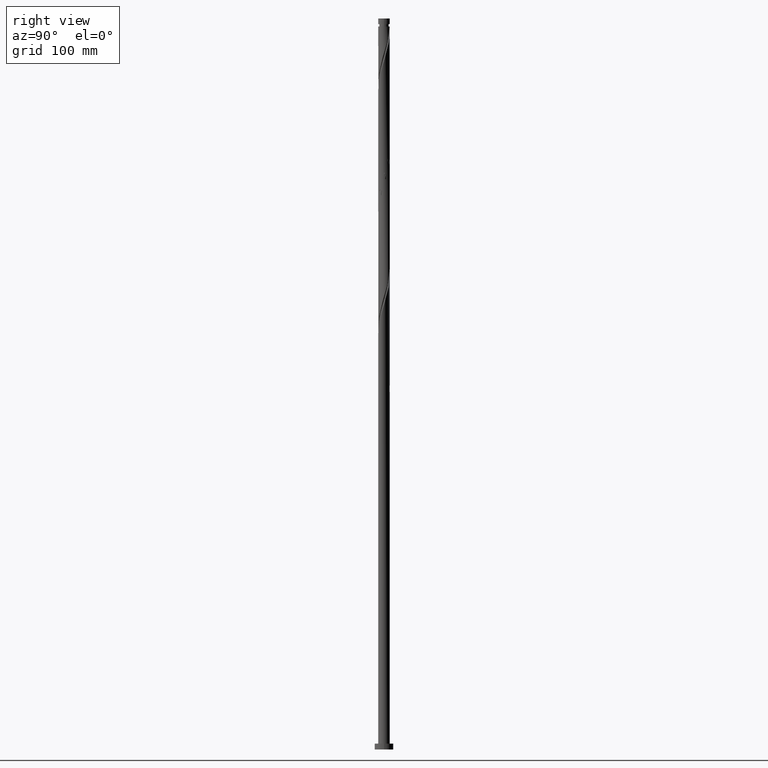
[diagram: clean part render]
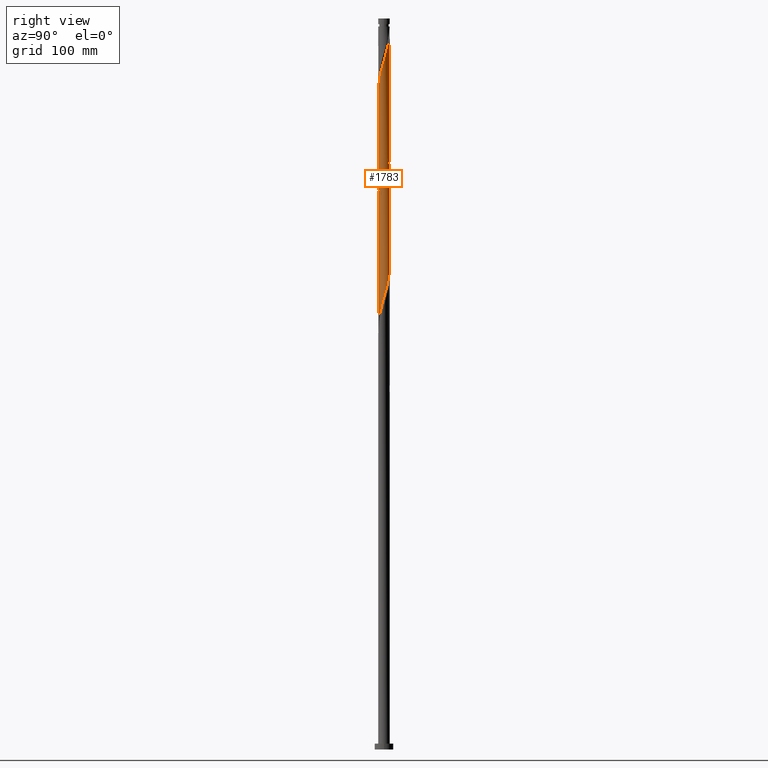
[diagram: same view with one face highlighted and labeled with its STEP entity id]
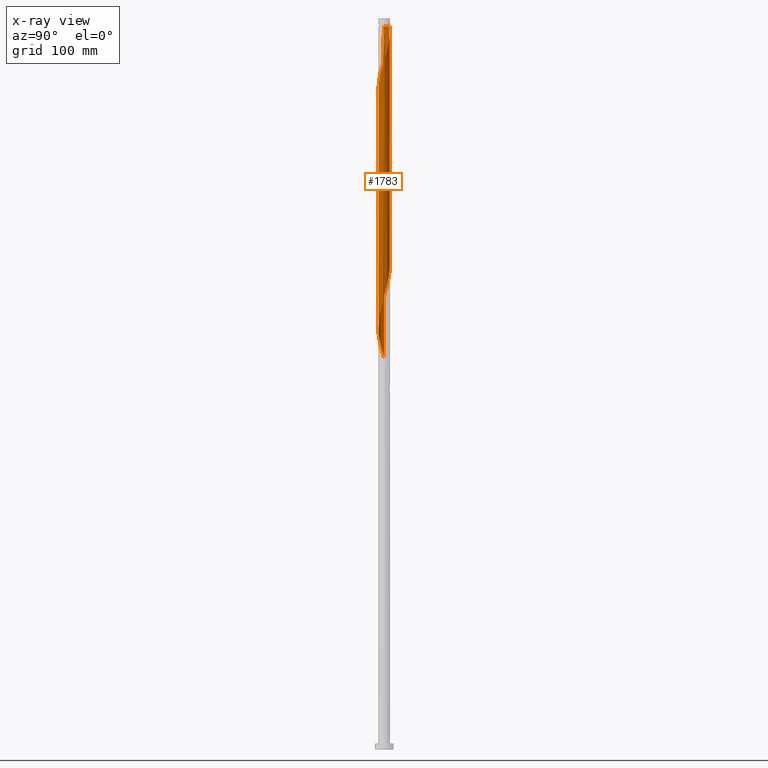
[diagram: x-ray of the same camera — body ghosted, the highlighted face saturated]
A machine part, right view. The second image highlights one B-rep face of the part: STEP entity #1783.
The next image is the same camera in x-ray: the body ghosted, the highlighted face saturated — about 0% of this face is hidden behind the body in this view.
In plain terms, the highlighted cylindrical surface (bore or boss wall) has radius 5 mm, axis along (-0, -0, -1).
Its self-contained STEP definition (entity closure, byte-faithful):
#5 = CARTESIAN_POINT ( 'NONE',  ( -0.9949874371066282919, -4.899999999999999467, 465.6409820109332145 ) ) ;
#23 = CARTESIAN_POINT ( 'NONE',  ( 1.298982946493225876, -4.850495550775351106, 368.3615702462273589 ) ) ;
#31 = CARTESIAN_POINT ( 'NONE',  ( -4.949659217317762483, -0.8458944471936422627, 445.5674525991682913 ) ) ;
#41 = CARTESIAN_POINT ( 'NONE',  ( -2.307797741308302175, -4.459678617185772076, 356.0086290697566938 ) ) ;
#49 = CARTESIAN_POINT ( 'NONE',  ( 4.985236888669570376, 0.3839442197092480802, 391.5233349521097352 ) ) ;
#56 = CARTESIAN_POINT ( 'NONE',  ( 3.942796063405584750, -3.074794172362343758, 379.1703937756391269 ) ) ;
#65 = CARTESIAN_POINT ( 'NONE',  ( -5.000000000000000888, -6.498353393827081133E-15, 337.7391907856272724 ) ) ;
#72 = CARTESIAN_POINT ( 'NONE',  ( -4.920992084686811374, -0.9992500617070465552, 544.3909820109331577 ) ) ;
#75 = CARTESIAN_POINT ( 'NONE',  ( -4.440654414424053620, 2.297953082997162610, 539.7586290697566938 ) ) ;
#89 = CARTESIAN_POINT ( 'NONE',  ( -4.970903322354092602, 0.5386280347410965508, 545.9350996579920547 ) ) ;
#102 = CARTESIAN_POINT ( 'NONE',  ( -3.657874423950744358, 3.440148031986227650, 535.1262761285802299 ) ) ;
#108 = CARTESIAN_POINT ( 'NONE',  ( 1.298982946493228541, 4.850495550775359987, 615.4203937756390133 ) ) ;
#117 = CARTESIAN_POINT ( 'NONE',  ( 2.697882318025196735, -4.209683004465666123, 576.8174525991685186 ) ) ;
#122 = CARTESIAN_POINT ( 'NONE',  ( 3.087966894742082857, 3.959687391745545515, 510.4203937756389564 ) ) ;
#128 = CARTESIAN_POINT ( 'NONE',  ( 2.307797741308303952, -4.459678617185782734, 575.2733349521096216 ) ) ;
#130 = CARTESIAN_POINT ( 'NONE',  ( 4.829804191874024433, 1.293441714247731245, 499.6115702462273021 ) ) ;
#136 = CARTESIAN_POINT ( 'NONE',  ( 3.087966894742087298, -3.959687391745552620, 578.3615702462274157 ) ) ;
#141 = CARTESIAN_POINT ( 'NONE',  ( -4.309847445641418417, -2.576796223737888081, 451.7439231874037091 ) ) ;
#150 = CARTESIAN_POINT ( 'NONE',  ( 3.942796063405584750, -3.074794172362343758, 484.1703937756390701 ) ) ;
#169 = CARTESIAN_POINT ( 'NONE',  ( 0.5409355705206818632, 4.992199163887311109, 414.6850996579921684 ) ) ;
#181 = CARTESIAN_POINT ( 'NONE',  ( -4.920992084686805157, 0.9992500617070461111, 439.3909820109331008 ) ) ;
#189 = CARTESIAN_POINT ( 'NONE',  ( -0.9949874371066282919, -4.899999999999999467, 360.6409820109332145 ) ) ;
#200 = CARTESIAN_POINT ( 'NONE',  ( 1.878418522500436394, 4.633739726649229063, 410.0527467168155908 ) ) ;
#205 = EDGE_LOOP ( 'NONE', ( #1254, #1425, #269, #314, #611, #1974, #1520, #957 ) ) ;
#209 = CARTESIAN_POINT ( 'NONE',  ( -4.787291605337244071, 1.442857957481454845, 437.8468643638743174 ) ) ;
#217 = CARTESIAN_POINT ( 'NONE',  ( -5.000000000000010658, 2.957871199948856038E-15, 541.0427732362393272 ) ) ;
#220 = CARTESIAN_POINT ( 'NONE',  ( -4.227717702860424254, 2.709440312738462087, 538.2145114226976830 ) ) ;
#228 = CARTESIAN_POINT ( 'NONE',  ( -5.000000000000000888, -2.405137692887724633E-15, 547.7391907856273292 ) ) ;
#244 = VECTOR ( 'NONE', #1192, 1000.000000000000000 ) ;
#260 = CARTESIAN_POINT ( 'NONE',  ( -2.565804065323801897, 4.291462396243016286, 530.4939231874037660 ) ) ;
#268 = CARTESIAN_POINT ( 'NONE',  ( -0.8422860106089078425, -4.928544843697032718, 564.4645114226979103 ) ) ;
#269 = ORIENTED_EDGE ( 'NONE', *, *, #1195, .F. ) ;
#276 = CARTESIAN_POINT ( 'NONE',  ( 5.000000000000003553, -0.2700999183963146422, 494.3352715536144615 ) ) ;
#284 = CARTESIAN_POINT ( 'NONE',  ( 0.8422860106089081755, 4.928544843697034494, 616.9645114226980240 ) ) ;
#291 = CARTESIAN_POINT ( 'NONE',  ( 4.653591125987684762, -1.886465853255862912, 488.8027467168154772 ) ) ;
#294 = VERTEX_POINT ( 'NONE', #1885 ) ;
#297 = CARTESIAN_POINT ( 'NONE',  ( 4.949659217317769588, -0.8458944471936451492, 590.7145114226979103 ) ) ;
#301 = CARTESIAN_POINT ( 'NONE',  ( -3.762979039183496077, -3.324853761300992527, 454.8321584815213896 ) ) ;
#305 = CARTESIAN_POINT ( 'NONE',  ( 4.440654414424064278, 2.297953082997165719, 601.5233349521097352 ) ) ;
#307 = CARTESIAN_POINT ( 'NONE',  ( 2.307797741308302175, 4.459678617185771188, 513.5086290697565801 ) ) ;
#310 = CARTESIAN_POINT ( 'NONE',  ( 4.227717702860424254, -2.709440312738462087, 485.7145114226979103 ) ) ;
#314 = ORIENTED_EDGE ( 'NONE', *, *, #1567, .T. ) ;
#326 = CARTESIAN_POINT ( 'NONE',  ( -5.020814560021381823, 0.07800600777514549167, 442.4792173050507813 ) ) ;
#335 = CARTESIAN_POINT ( 'NONE',  ( 4.440654414424053620, -2.297953082997163499, 382.2586290697567506 ) ) ;
#342 = CARTESIAN_POINT ( 'NONE',  ( -0.5409355705206814191, -4.992199163887311109, 362.1850996579919979 ) ) ;
#352 = CARTESIAN_POINT ( 'NONE',  ( 5.020814560021381823, -0.07800600777514496431, 389.9792173050507813 ) ) ;
#362 = CARTESIAN_POINT ( 'NONE',  ( 4.709949166430287271, 1.740988981301817340, 396.1556878932861991 ) ) ;
#364 = AXIS2_PLACEMENT_3D ( 'NONE', #384, #1168, #1029 ) ;
#376 = VECTOR ( 'NONE', #1596, 1000.000000000000000 ) ;
#380 = CARTESIAN_POINT ( 'NONE',  ( -2.168141511977371039, -4.529219156478549557, 559.8321584815212191 ) ) ;
#384 = CARTESIAN_POINT ( 'NONE',  ( 0.000000000000000000, 0.000000000000000000, 630.0000000000000000 ) ) ;
#391 = CARTESIAN_POINT ( 'NONE',  ( -2.963466618670244745, -4.053705636007495450, 556.7439231874036523 ) ) ;
#400 = CARTESIAN_POINT ( 'NONE',  ( -5.000000000000000888, -2.405137692887724633E-15, 547.7391907856273292 ) ) ;
#407 = CARTESIAN_POINT ( 'NONE',  ( -5.000000000000000888, 0.000000000000000000, 630.0000000000000000 ) ) ;
#415 = CARTESIAN_POINT ( 'NONE',  ( 0.5409355705206818632, 4.992199163887311109, 519.6850996579919411 ) ) ;
#424 = CARTESIAN_POINT ( 'NONE',  ( 3.425472966962791244, 3.642270576523267245, 508.8762761285803435 ) ) ;
#432 = LINE ( 'NONE', #1705, #376 ) ;
#439 = CARTESIAN_POINT ( 'NONE',  ( 4.970903322354091713, -0.5386280347410981051, 493.4350996579919979 ) ) ;
#446 = CARTESIAN_POINT ( 'NONE',  ( 0.5409355705206830844, -4.992199163887320879, 569.0968643638742606 ) ) ;
#449 = CARTESIAN_POINT ( 'NONE',  ( 5.000000000000000888, 0.1922559394384210363, 495.8825965376867657 ) ) ;
#458 = EDGE_CURVE ( 'NONE', #1194, #1036, #1398, .T. ) ;
#462 = CARTESIAN_POINT ( 'NONE',  ( 4.440654414424053620, -2.297953082997163499, 487.2586290697568643 ) ) ;
#476 = CARTESIAN_POINT ( 'NONE',  ( 3.657874423950743914, -3.440148031986228094, 377.6262761285802867 ) ) ;
#484 = CARTESIAN_POINT ( 'NONE',  ( 2.697882318025192738, 4.209683004465659018, 406.9645114226979103 ) ) ;
#495 = CARTESIAN_POINT ( 'NONE',  ( 3.310670521310490333, -3.746926833996858885, 376.0821584815213896 ) ) ;
#503 = CARTESIAN_POINT ( 'NONE',  ( -4.970903322354092602, 0.5386280347410965508, 440.9350996579919411 ) ) ;
#512 = CARTESIAN_POINT ( 'NONE',  ( 0.8422860106089066212, -4.928544843697026501, 366.8174525991684050 ) ) ;
#517 = CARTESIAN_POINT ( 'NONE',  ( -4.970903322354099707, -0.5386280347410958846, 542.8468643638742606 ) ) ;
#543 = CARTESIAN_POINT ( 'NONE',  ( -1.733562229235299235, -4.689857353626956105, 561.3762761285801162 ) ) ;
#555 = CARTESIAN_POINT ( 'NONE',  ( -0.9949874371066600443, 4.899999999999949729, 623.1409820109334987 ) ) ;
#559 = CARTESIAN_POINT ( 'NONE',  ( -2.168141511977365710, 4.529219156478543340, 528.9498055403449825 ) ) ;
#572 = CARTESIAN_POINT ( 'NONE',  ( -3.310670521310491221, 3.746926833996858885, 533.5821584815214464 ) ) ;
#579 = CARTESIAN_POINT ( 'NONE',  ( -0.9949874371066600443, 4.899999999999949729, 623.1409820109334987 ) ) ;
#582 = CARTESIAN_POINT ( 'NONE',  ( 4.985236888669570376, 0.3839442197092480802, 496.5233349521096784 ) ) ;
#589 = CARTESIAN_POINT ( 'NONE',  ( 4.653591125987692756, 1.886465853255867575, 599.9792173050503834 ) ) ;
#593 = CARTESIAN_POINT ( 'NONE',  ( 5.000000000000000888, 6.123233995736767268E-16, 623.1409820109334987 ) ) ;
#600 = CARTESIAN_POINT ( 'NONE',  ( 2.963466618670242525, 4.053705636007496338, 609.2439231874036523 ) ) ;
#602 = CARTESIAN_POINT ( 'NONE',  ( 4.309847445641416641, 2.576796223737889857, 504.2439231874038796 ) ) ;
#610 = CARTESIAN_POINT ( 'NONE',  ( -0.5409355705206757570, 4.992199163887320879, 621.5968643638740332 ) ) ;
#611 = ORIENTED_EDGE ( 'NONE', *, *, #1511, .F. ) ;
#626 = CARTESIAN_POINT ( 'NONE',  ( 2.168141511977365266, -4.529219156478542452, 476.4498055403448120 ) ) ;
#638 = CARTESIAN_POINT ( 'NONE',  ( 0.000000000000000000, 0.000000000000000000, 623.1409820109331577 ) ) ;
#646 = CARTESIAN_POINT ( 'NONE',  ( 3.087966894742082857, 3.959687391745545515, 405.4203937756390701 ) ) ;
#656 = CARTESIAN_POINT ( 'NONE',  ( -2.963466618670239416, 4.053705636007489232, 427.0380408344625494 ) ) ;
#663 = CARTESIAN_POINT ( 'NONE',  ( -2.697882318025192738, -4.209683004465659906, 354.4645114226977967 ) ) ;
#675 = CARTESIAN_POINT ( 'NONE',  ( 2.565804065323801897, -4.291462396243016286, 372.9939231874037660 ) ) ;
#684 = CARTESIAN_POINT ( 'NONE',  ( 4.036413242412456803, 2.950824992519442080, 400.7880408344626630 ) ) ;
#693 = CARTESIAN_POINT ( 'NONE',  ( -3.657874423950751464, -3.440148031986232979, 553.6556878932859718 ) ) ;
#698 = CARTESIAN_POINT ( 'NONE',  ( -4.709949166430287271, -1.740988981301818450, 343.6556878932860286 ) ) ;
#709 = VERTEX_POINT ( 'NONE', #1302 ) ;
#712 = CARTESIAN_POINT ( 'NONE',  ( -0.3855890747245842576, 5.006594136618700119, 522.7733349521096216 ) ) ;
#735 = CARTESIAN_POINT ( 'NONE',  ( -4.949659217317762483, -0.8458944471936422627, 340.5674525991684050 ) ) ;
#758 = CARTESIAN_POINT ( 'NONE',  ( -1.449039303692573277, -4.807800836112686049, 464.0968643638743174 ) ) ;
#775 = CARTESIAN_POINT ( 'NONE',  ( 4.309847445641426411, -2.576796223737892966, 584.5380408344623220 ) ) ;
#779 = CARTESIAN_POINT ( 'NONE',  ( -4.509898306035855065, -2.158892602519852044, 450.1998055403450962 ) ) ;
#788 = CARTESIAN_POINT ( 'NONE',  ( 5.000000000000000888, 6.244394755447631644E-15, 495.2391907856272155 ) ) ;
#790 = CARTESIAN_POINT ( 'NONE',  ( 2.565804065323801897, -4.291462396243016286, 477.9939231874038228 ) ) ;
#812 = CARTESIAN_POINT ( 'NONE',  ( -1.298982946493226320, 4.850495550775351106, 420.8615702462274157 ) ) ;
#825 = CARTESIAN_POINT ( 'NONE',  ( -0.8422860106089054000, 4.928544843697026501, 419.3174525991684618 ) ) ;
#832 = CARTESIAN_POINT ( 'NONE',  ( -1.449039303692573277, -4.807800836112686049, 359.0968643638742606 ) ) ;
#844 = CARTESIAN_POINT ( 'NONE',  ( 4.309847445641416641, 2.576796223737889857, 399.2439231874037660 ) ) ;
#853 = CARTESIAN_POINT ( 'NONE',  ( 3.425472966962791244, 3.642270576523267245, 403.8762761285803435 ) ) ;
#862 = CARTESIAN_POINT ( 'NONE',  ( -4.999999999999937828, 0.000000000000000000, 623.1409820109331577 ) ) ;
#865 = CARTESIAN_POINT ( 'NONE',  ( -4.509898306035855065, -2.158892602519852044, 345.1998055403450394 ) ) ;
#875 = CARTESIAN_POINT ( 'NONE',  ( -5.000000000000003553, 0.2700999183963094241, 546.8352715536146889 ) ) ;
#906 = CARTESIAN_POINT ( 'NONE',  ( 3.310670521310499659, 3.746926833996863326, 607.6998055403448689 ) ) ;
#909 = CARTESIAN_POINT ( 'NONE',  ( -4.309847445641418417, -2.576796223737888081, 346.7439231874037091 ) ) ;
#914 = CARTESIAN_POINT ( 'NONE',  ( 3.942796063405590079, 3.074794172362349531, 604.6115702462273021 ) ) ;
#921 = CIRCLE ( 'NONE', #1175, 4.999999999999937828 ) ;
#927 = CARTESIAN_POINT ( 'NONE',  ( 2.565804065323806338, 4.291462396243024280, 610.7880408344625494 ) ) ;
#933 = CARTESIAN_POINT ( 'NONE',  ( 3.310670521310490333, -3.746926833996858885, 481.0821584815213328 ) ) ;
#938 = CARTESIAN_POINT ( 'NONE',  ( 4.920992084686811374, 0.9992500617070458890, 596.8909820109330440 ) ) ;
#942 = CARTESIAN_POINT ( 'NONE',  ( -4.036413242412457691, -2.950824992519440304, 453.2880408344626062 ) ) ;
#949 = CARTESIAN_POINT ( 'NONE',  ( 3.762979039183496521, 3.324853761300991195, 507.3321584815212191 ) ) ;
#957 = ORIENTED_EDGE ( 'NONE', *, *, #1810, .F. ) ;
#960 = CARTESIAN_POINT ( 'NONE',  ( 4.509898306035854176, 2.158892602519851600, 502.6998055403448689 ) ) ;
#962 = CARTESIAN_POINT ( 'NONE',  ( 3.657874423950743914, -3.440148031986228094, 482.6262761285801730 ) ) ;
#968 = CARTESIAN_POINT ( 'NONE',  ( -0.3855890747245842576, 5.006594136618700119, 417.7733349521096216 ) ) ;
#978 = CARTESIAN_POINT ( 'NONE',  ( 1.733562229235296570, -4.689857353626947223, 369.9056878932860855 ) ) ;
#990 = CARTESIAN_POINT ( 'NONE',  ( 2.963466618670239416, -4.053705636007489232, 374.5380408344625494 ) ) ;
#999 = CARTESIAN_POINT ( 'NONE',  ( -4.440654414424053620, 2.297953082997162610, 434.7586290697566938 ) ) ;
#1010 = CARTESIAN_POINT ( 'NONE',  ( -3.942796063405584750, 3.074794172362344646, 431.6703937756389564 ) ) ;
#1017 = CARTESIAN_POINT ( 'NONE',  ( -4.227717702860432247, -2.709440312738463863, 550.5674525991682913 ) ) ;
#1020 = FACE_OUTER_BOUND ( 'NONE', #205, .T. ) ;
#1029 = DIRECTION ( 'NONE',  ( -1.000000000000000000, 0.000000000000000000, 0.000000000000000000 ) ) ;
#1036 = VERTEX_POINT ( 'NONE', #400 ) ;
#1058 = CARTESIAN_POINT ( 'NONE',  ( 0.9949874371066290690, 4.899999999999999467, 518.1409820109331577 ) ) ;
#1065 = CARTESIAN_POINT ( 'NONE',  ( 3.425472966962795685, -3.642270576523275238, 579.9056878932859718 ) ) ;
#1069 = CARTESIAN_POINT ( 'NONE',  ( 4.709949166430287271, 1.740988981301817340, 501.1556878932861423 ) ) ;
#1076 = CARTESIAN_POINT ( 'NONE',  ( 4.709949166430296152, -1.740988981301822447, 587.6262761285802299 ) ) ;
#1080 = CARTESIAN_POINT ( 'NONE',  ( 4.920992084686805157, -0.9992500617070465552, 491.8909820109332145 ) ) ;
#1082 = VECTOR ( 'NONE', #1541, 1000.000000000000000 ) ;
#1086 = CARTESIAN_POINT ( 'NONE',  ( 0.9949874371066280698, -4.900000000000006573, 570.6409820109331577 ) ) ;
#1091 = CARTESIAN_POINT ( 'NONE',  ( -0.5409355705206814191, -4.992199163887311109, 467.1850996579919979 ) ) ;
#1095 = CARTESIAN_POINT ( 'NONE',  ( 1.449039303692575498, -4.807800836112694043, 572.1850996579920547 ) ) ;
#1099 = CARTESIAN_POINT ( 'NONE',  ( 4.036413242412456803, 2.950824992519442080, 505.7880408344626062 ) ) ;
#1104 = VERTEX_POINT ( 'NONE', #555 ) ;
#1109 = CARTESIAN_POINT ( 'NONE',  ( -3.425472966962789467, -3.642270576523269465, 456.3762761285802299 ) ) ;
#1120 = CARTESIAN_POINT ( 'NONE',  ( 3.762979039183496521, 3.324853761300991195, 402.3321584815213896 ) ) ;
#1130 = CARTESIAN_POINT ( 'NONE',  ( 4.653591125987684762, -1.886465853255862912, 383.8027467168154203 ) ) ;
#1141 = CARTESIAN_POINT ( 'NONE',  ( 0.07767324789804880281, 4.999396650253006946, 416.2292173050507813 ) ) ;
#1148 = CARTESIAN_POINT ( 'NONE',  ( -1.733562229235295460, 4.689857353626948111, 422.4056878932861991 ) ) ;
#1158 = CARTESIAN_POINT ( 'NONE',  ( -4.036413242412457691, -2.950824992519440304, 348.2880408344624925 ) ) ;
#1164 = CARTESIAN_POINT ( 'NONE',  ( -4.787291605337252065, -1.442857957481456399, 545.9350996579921684 ) ) ;
#1168 = DIRECTION ( 'NONE',  ( -0.000000000000000000, -0.000000000000000000, -1.000000000000000000 ) ) ;
#1175 = AXIS2_PLACEMENT_3D ( 'NONE', #638, #2046, #1884 ) ;
#1178 = LINE ( 'NONE', #1695, #1082 ) ;
#1185 = CARTESIAN_POINT ( 'NONE',  ( -4.653591125987692756, -1.886465853255866687, 547.4792173050508381 ) ) ;
#1192 = DIRECTION ( 'NONE',  ( -0.000000000000000000, -0.000000000000000000, -1.000000000000000000 ) ) ;
#1194 = VERTEX_POINT ( 'NONE', #862 ) ;
#1195 = EDGE_CURVE ( 'NONE', #709, #1104, #1931, .T. ) ;
#1202 = CARTESIAN_POINT ( 'NONE',  ( -1.733562229235295460, 4.689857353626948111, 527.4056878932861991 ) ) ;
#1216 = CARTESIAN_POINT ( 'NONE',  ( -4.653591125987684762, 1.886465853255864245, 541.3027467168155908 ) ) ;
#1225 = EDGE_CURVE ( 'NONE', #2040, #1913, #432, .T. ) ;
#1231 = CARTESIAN_POINT ( 'NONE',  ( -0.3855890747245868111, -5.006594136618707225, 566.0086290697565801 ) ) ;
#1236 = CARTESIAN_POINT ( 'NONE',  ( 5.000000000000000888, 6.244394755447631644E-15, 495.2391907856272155 ) ) ;
#1242 = CARTESIAN_POINT ( 'NONE',  ( 4.227717702860432247, 2.709440312738463863, 603.0674525991686323 ) ) ;
#1247 = CARTESIAN_POINT ( 'NONE',  ( -1.878418522500437948, -4.633739726649229063, 462.5527467168154772 ) ) ;
#1254 = ORIENTED_EDGE ( 'NONE', *, *, #458, .F. ) ;
#1267 = CARTESIAN_POINT ( 'NONE',  ( 4.949659217317762483, 0.8458944471936410414, 498.0674525991685755 ) ) ;
#1271 = CARTESIAN_POINT ( 'NONE',  ( -0.07767324789804987140, -4.999396650253006946, 468.7292173050508950 ) ) ;
#1292 = CARTESIAN_POINT ( 'NONE',  ( 1.449039303692573499, 4.807800836112686049, 411.5968643638743742 ) ) ;
#1300 = CARTESIAN_POINT ( 'NONE',  ( -2.565804065323801897, 4.291462396243016286, 425.4939231874038228 ) ) ;
#1302 = CARTESIAN_POINT ( 'NONE',  ( -5.000000000000010658, 2.957871199948856038E-15, 541.0427732362393272 ) ) ;
#1307 =( BOUNDED_CURVE ( )  B_SPLINE_CURVE ( 2, ( #228, #875, #89, #1360, #1531, #1216, #75, #220, #2010, #102, #572, #1858, #260, #559, #1202, #1350, #1372, #712, #2002, #415, #1058, #1897, #1906, #307, #2053, #122, #424, #949, #1099, #602, #960, #1069, #130, #1267, #582, #449, #788 ),
 .UNSPECIFIED., .F., .T. ) 
 B_SPLINE_CURVE_WITH_KNOTS ( ( 3, 2, 2, 2, 2, 2, 2, 2, 2, 2, 2, 2, 2, 2, 2, 2, 2, 2, 3 ),
 ( 0.4295293573162901613, 0.4338235294117647189, 0.4411764705882352811, 0.4485294117647058987, 0.4558823529411764608, 0.4632352941176470784, 0.4705882352941176405, 0.4779411764705882582, 0.4852941176470588203, 0.4926470588235294379, 0.5000000000000000000, 0.5073529411764705621, 0.5147058823529411242, 0.5220588235294117974, 0.5294117647058823595, 0.5367647058823529216, 0.5441176470588234837, 0.5514705882352941568, 0.5545293573162902723 ),
 .UNSPECIFIED. ) 
 CURVE ( )  GEOMETRIC_REPRESENTATION_ITEM ( )  RATIONAL_B_SPLINE_CURVE ( ( 0.9072066346053205832, 0.9068261157890873392, 0.9090909090909587986, 0.9052128875409900521, 0.9090909090909587986, 0.9052128875409900521, 0.9090909090909587986, 0.9052128875409900521, 0.9090909090909587986, 0.9052128875409900521, 0.9090909090909587986, 0.9052128875409900521, 0.9090909090909587986, 0.9052128875409900521, 0.9090909090909587986, 0.9052128875409900521, 0.9090909090909587986, 0.9052128875409900521, 0.9090909090909587986, 0.9052128875409900521, 0.9090909090909587986, 0.9052128875409900521, 0.9090909090909587986, 0.9052128875409900521, 0.9090909090909587986, 0.9052128875409900521, 0.9090909090909587986, 0.9052128875409900521, 0.9090909090909587986, 0.9052128875409900521, 0.9090909090909587986, 0.9052128875409900521, 0.9090909090909587986, 0.9052128875409900521, 0.9090909090909587986, 0.9074776808428612895, 0.9072066346053204722 ) ) 
 REPRESENTATION_ITEM ( '' )  );
#1309 = CARTESIAN_POINT ( 'NONE',  ( -3.087966894742084190, -3.959687391745545071, 352.9203937756390133 ) ) ;
#1319 = CARTESIAN_POINT ( 'NONE',  ( -3.310670521310491221, 3.746926833996858885, 428.5821584815215033 ) ) ;
#1335 = CARTESIAN_POINT ( 'NONE',  ( -3.310670521310499215, -3.746926833996863326, 555.1998055403448689 ) ) ;
#1346 = CARTESIAN_POINT ( 'NONE',  ( -4.440654414424064278, -2.297953082997166163, 549.0233349521096216 ) ) ;
#1350 = CARTESIAN_POINT ( 'NONE',  ( -1.298982946493226320, 4.850495550775351106, 525.8615702462273021 ) ) ;
#1360 = CARTESIAN_POINT ( 'NONE',  ( -4.920992084686805157, 0.9992500617070461111, 544.3909820109332713 ) ) ;
#1369 = CARTESIAN_POINT ( 'NONE',  ( 1.733562229235301677, 4.689857353626955216, 613.8762761285802299 ) ) ;
#1372 = CARTESIAN_POINT ( 'NONE',  ( -0.8422860106089054000, 4.928544843697026501, 524.3174525991685186 ) ) ;
#1381 = CARTESIAN_POINT ( 'NONE',  ( 4.829804191874032426, -1.293441714247731911, 589.1703937756391269 ) ) ;
#1389 = CARTESIAN_POINT ( 'NONE',  ( 0.07767324789804790075, -4.999396650253013163, 567.5527467168153635 ) ) ;
#1397 = CARTESIAN_POINT ( 'NONE',  ( 2.963466618670239416, -4.053705636007489232, 479.5380408344626630 ) ) ;
#1398 = LINE ( 'NONE', #407, #244 ) ;
#1406 = CARTESIAN_POINT ( 'NONE',  ( 0.3855890747245842576, -5.006594136618700119, 470.2733349521096784 ) ) ;
#1411 = CARTESIAN_POINT ( 'NONE',  ( 4.787291605337252953, 1.442857957481454845, 598.4350996579920547 ) ) ;
#1416 = CARTESIAN_POINT ( 'NONE',  ( -4.709949166430287271, -1.740988981301818450, 448.6556878932860855 ) ) ;
#1425 = ORIENTED_EDGE ( 'NONE', *, *, #1445, .T. ) ;
#1439 = CARTESIAN_POINT ( 'NONE',  ( -2.307797741308302175, -4.459678617185772076, 461.0086290697567506 ) ) ;
#1445 = EDGE_CURVE ( 'NONE', #1194, #1104, #921, .T. ) ;
#1449 = CARTESIAN_POINT ( 'NONE',  ( 4.227717702860424254, -2.709440312738462087, 380.7145114226976830 ) ) ;
#1460 = CARTESIAN_POINT ( 'NONE',  ( -4.653591125987684762, 1.886465853255864245, 436.3027467168154772 ) ) ;
#1468 = CARTESIAN_POINT ( 'NONE',  ( -1.878418522500437948, -4.633739726649229063, 357.5527467168155340 ) ) ;
#1477 = CARTESIAN_POINT ( 'NONE',  ( 4.949659217317762483, 0.8458944471936410414, 393.0674525991684618 ) ) ;
#1482 =( BOUNDED_CURVE ( )  B_SPLINE_CURVE ( 2, ( #1236, #276, #439, #1080, #1720, #291, #462, #310, #150, #962, #933, #1397, #790, #626, #1751, #1592, #1899, #1406, #1271, #1091, #5, #758, #1247, #1439, #1918, #1731, #1109, #301, #942, #141, #779, #1416, #2065, #31, #1489, #326, #503, #181, #209, #1460, #999, #1623, #1010, #1768, #1319, #656, #1300, #1950, #1148, #812, #825, #968, #1141, #169, #1799, #1292, #200, #1777, #484, #646, #853, #1120, #684, #844, #1602, #362, #1634, #1477, #49, #352, #1927, #1760, #1938, #1130, #335, #1449, #56, #476, #495, #990, #675, #1970, #978, #23, #512, #1613, #1645, #342, #189, #832, #1468, #41, #663, #1309, #1960, #1788, #1158, #909, #865, #698, #1501, #735, #1844, #1685, #65 ),
 .UNSPECIFIED., .F., .T. ) 
 B_SPLINE_CURVE_WITH_KNOTS ( ( 3, 2, 2, 2, 2, 2, 2, 2, 2, 2, 2, 2, 2, 2, 2, 2, 2, 2, 2, 2, 2, 2, 2, 2, 2, 2, 2, 2, 2, 2, 2, 2, 2, 2, 2, 2, 2, 2, 2, 2, 2, 2, 2, 2, 2, 2, 2, 2, 2, 2, 2, 2, 3 ),
 ( 0.5545293573162902723, 0.5588235294117647189, 0.5661764705882352811, 0.5735294117647058432, 0.5808823529411765163, 0.5882352941176470784, 0.5955882352941176405, 0.6029411764705882026, 0.6102941176470588758, 0.6176470588235294379, 0.6250000000000000000, 0.6323529411764705621, 0.6397058823529411242, 0.6470588235294117974, 0.6544117647058823595, 0.6617647058823529216, 0.6691176470588234837, 0.6764705882352941568, 0.6838235294117647189, 0.6911764705882352811, 0.6985294117647058432, 0.7058823529411765163, 0.7132352941176470784, 0.7205882352941176405, 0.7279411764705882026, 0.7352941176470588758, 0.7426470588235294379, 0.7500000000000000000, 0.7573529411764705621, 0.7647058823529411242, 0.7720588235294117974, 0.7794117647058823595, 0.7867647058823529216, 0.7941176470588234837, 0.8014705882352941568, 0.8088235294117647189, 0.8161764705882352811, 0.8235294117647058432, 0.8308823529411765163, 0.8382352941176470784, 0.8455882352941176405, 0.8529411764705882026, 0.8602941176470588758, 0.8676470588235294379, 0.8750000000000000000, 0.8823529411764705621, 0.8897058823529411242, 0.8970588235294117974, 0.9044117647058823595, 0.9117647058823529216, 0.9191176470588234837, 0.9264705882352941568, 0.9295293573162904943 ),
 .UNSPECIFIED. ) 
 CURVE ( )  GEOMETRIC_REPRESENTATION_ITEM ( )  RATIONAL_B_SPLINE_CURVE ( ( 0.9072066346053204722, 0.9068261157890874502, 0.9090909090909587986, 0.9052128875409900521, 0.9090909090909587986, 0.9052128875409900521, 0.9090909090909587986, 0.9052128875409900521, 0.9090909090909587986, 0.9052128875409900521, 0.9090909090909587986, 0.9052128875409900521, 0.9090909090909587986, 0.9052128875409900521, 0.9090909090909587986, 0.9052128875409900521, 0.9090909090909587986, 0.9052128875409900521, 0.9090909090909587986, 0.9052128875409900521, 0.9090909090909587986, 0.9052128875409900521, 0.9090909090909587986, 0.9052128875409900521, 0.9090909090909587986, 0.9052128875409900521, 0.9090909090909587986, 0.9052128875409900521, 0.9090909090909587986, 0.9052128875409900521, 0.9090909090909587986, 0.9052128875409900521, 0.9090909090909587986, 0.9052128875409900521, 0.9090909090909587986, 0.9052128875409900521, 0.9090909090909587986, 0.9052128875409900521, 0.9090909090909587986, 0.9052128875409900521, 0.9090909090909587986, 0.9052128875409900521, 0.9090909090909587986, 0.9052128875409900521, 0.9090909090909587986, 0.9052128875409900521, 0.9090909090909587986, 0.9052128875409900521, 0.9090909090909587986, 0.9052128875409900521, 0.9090909090909587986, 0.9052128875409900521, 0.9090909090909587986, 0.9052128875409900521, 0.9090909090909587986, 0.9052128875409900521, 0.9090909090909587986, 0.9052128875409900521, 0.9090909090909587986, 0.9052128875409900521, 0.9090909090909587986, 0.9052128875409900521, 0.9090909090909587986, 0.9052128875409900521, 0.9090909090909587986, 0.9052128875409900521, 0.9090909090909587986, 0.9052128875409900521, 0.9090909090909587986, 0.9052128875409900521, 0.9090909090909587986, 0.9052128875409900521, 0.9090909090909587986, 0.9052128875409900521, 0.9090909090909587986, 0.9052128875409900521, 0.9090909090909587986, 0.9052128875409900521, 0.9090909090909587986, 0.9052128875409900521, 0.9090909090909587986, 0.9052128875409900521, 0.9090909090909587986, 0.9052128875409900521, 0.9090909090909587986, 0.9052128875409900521, 0.9090909090909587986, 0.9052128875409900521, 0.9090909090909587986, 0.9052128875409900521, 0.9090909090909587986, 0.9052128875409900521, 0.9090909090909587986, 0.9052128875409900521, 0.9090909090909587986, 0.9052128875409900521, 0.9090909090909587986, 0.9052128875409900521, 0.9090909090909587986, 0.9052128875409900521, 0.9090909090909587986, 0.9052128875409900521, 0.9090909090909587986, 0.9074776808428611785, 0.9072066346053203612 ) ) 
 REPRESENTATION_ITEM ( '' )  );
#1489 = CARTESIAN_POINT ( 'NONE',  ( -4.985236888669570376, -0.3839442197092488018, 444.0233349521097921 ) ) ;
#1496 = CARTESIAN_POINT ( 'NONE',  ( -3.942796063405592744, -3.074794172362347755, 552.1115702462273021 ) ) ;
#1501 = CARTESIAN_POINT ( 'NONE',  ( -4.829804191874024433, -1.293441714247729468, 342.1115702462273021 ) ) ;
#1511 = EDGE_CURVE ( 'NONE', #1913, #294, #1482, .T. ) ;
#1520 = ORIENTED_EDGE ( 'NONE', *, *, #1225, .T. ) ;
#1523 = CYLINDRICAL_SURFACE ( 'NONE', #364, 5.000000000000000888 ) ;
#1531 = CARTESIAN_POINT ( 'NONE',  ( -4.787291605337244071, 1.442857957481454845, 542.8468643638742606 ) ) ;
#1538 = CARTESIAN_POINT ( 'NONE',  ( 5.020814560021389816, 0.07800600777514697659, 593.8027467168155908 ) ) ;
#1541 = DIRECTION ( 'NONE',  ( -0.000000000000000000, -0.000000000000000000, -1.000000000000000000 ) ) ;
#1557 = CARTESIAN_POINT ( 'NONE',  ( 0.3855890747245875327, 5.006594136618707225, 618.5086290697568074 ) ) ;
#1564 = CARTESIAN_POINT ( 'NONE',  ( 4.509898306035858617, -2.158892602519858706, 586.0821584815215601 ) ) ;
#1567 = EDGE_CURVE ( 'NONE', #709, #294, #1178, .T. ) ;
#1579 = CARTESIAN_POINT ( 'NONE',  ( 5.000000000000000888, 6.244394755447631644E-15, 495.2391907856272155 ) ) ;
#1592 = CARTESIAN_POINT ( 'NONE',  ( 1.298982946493225876, -4.850495550775351106, 473.3615702462271884 ) ) ;
#1596 = DIRECTION ( 'NONE',  ( -0.000000000000000000, -0.000000000000000000, -1.000000000000000000 ) ) ;
#1602 = CARTESIAN_POINT ( 'NONE',  ( 4.509898306035854176, 2.158892602519851600, 397.6998055403448689 ) ) ;
#1613 = CARTESIAN_POINT ( 'NONE',  ( 0.3855890747245842576, -5.006594136618700119, 365.2733349521095647 ) ) ;
#1623 = CARTESIAN_POINT ( 'NONE',  ( -4.227717702860424254, 2.709440312738462087, 433.2145114226977967 ) ) ;
#1634 = CARTESIAN_POINT ( 'NONE',  ( 4.829804191874024433, 1.293441714247731245, 394.6115702462273021 ) ) ;
#1645 = CARTESIAN_POINT ( 'NONE',  ( -0.07767324789804987140, -4.999396650253006946, 363.7292173050508381 ) ) ;
#1685 = CARTESIAN_POINT ( 'NONE',  ( -5.000000000000001776, -0.1922559394384072418, 338.3825965376869362 ) ) ;
#1695 = CARTESIAN_POINT ( 'NONE',  ( -5.000000000000000888, 0.000000000000000000, 630.0000000000000000 ) ) ;
#1705 = CARTESIAN_POINT ( 'NONE',  ( 5.000000000000000888, 6.123233995736767268E-16, 630.0000000000000000 ) ) ;
#1716 = CARTESIAN_POINT ( 'NONE',  ( 3.657874423950751464, 3.440148031986232535, 606.1556878932859718 ) ) ;
#1720 = CARTESIAN_POINT ( 'NONE',  ( 4.787291605337244071, -1.442857957481454401, 490.3468643638743742 ) ) ;
#1724 = CARTESIAN_POINT ( 'NONE',  ( 4.036413242412463021, -2.950824992519446521, 582.9939231874036523 ) ) ;
#1731 = CARTESIAN_POINT ( 'NONE',  ( -3.087966894742084190, -3.959687391745545071, 457.9203937756390133 ) ) ;
#1738 = CARTESIAN_POINT ( 'NONE',  ( 3.762979039183500074, -3.324853761300999189, 581.4498055403448689 ) ) ;
#1751 = CARTESIAN_POINT ( 'NONE',  ( 1.733562229235296570, -4.689857353626947223, 474.9056878932861991 ) ) ;
#1760 = CARTESIAN_POINT ( 'NONE',  ( 4.920992084686805157, -0.9992500617070465552, 386.8909820109331577 ) ) ;
#1768 = CARTESIAN_POINT ( 'NONE',  ( -3.657874423950744358, 3.440148031986227650, 430.1262761285801162 ) ) ;
#1777 = CARTESIAN_POINT ( 'NONE',  ( 2.307797741308302175, 4.459678617185771188, 408.5086290697566938 ) ) ;
#1783 = ADVANCED_FACE ( 'NONE', ( #1020 ), #1523, .T. ) ;
#1788 = CARTESIAN_POINT ( 'NONE',  ( -3.762979039183496077, -3.324853761300992527, 349.8321584815214464 ) ) ;
#1799 = CARTESIAN_POINT ( 'NONE',  ( 0.9949874371066290690, 4.899999999999999467, 413.1409820109332713 ) ) ;
#1810 = EDGE_CURVE ( 'NONE', #1036, #1913, #1307, .T. ) ;
#1818 = CARTESIAN_POINT ( 'NONE',  ( -2.565804065323806782, -4.291462396243023392, 558.2880408344626630 ) ) ;
#1830 = CARTESIAN_POINT ( 'NONE',  ( -5.000000000000011546, -0.2700999183963069816, 541.9466924682517401 ) ) ;
#1844 = CARTESIAN_POINT ( 'NONE',  ( -4.985236888669570376, -0.3839442197092488018, 339.0233349521096784 ) ) ;
#1852 = CARTESIAN_POINT ( 'NONE',  ( 4.970903322354101483, 0.5386280347410964398, 595.3468643638742606 ) ) ;
#1858 = CARTESIAN_POINT ( 'NONE',  ( -2.963466618670239416, 4.053705636007489232, 532.0380408344626630 ) ) ;
#1877 = CARTESIAN_POINT ( 'NONE',  ( 1.878418522500438614, -4.633739726649237944, 573.7292173050507245 ) ) ;
#1884 = DIRECTION ( 'NONE',  ( -1.000000000000000000, 0.000000000000000000, 0.000000000000000000 ) ) ;
#1885 = CARTESIAN_POINT ( 'NONE',  ( -5.000000000000000888, -6.498353393827081133E-15, 337.7391907856272155 ) ) ;
#1894 = CARTESIAN_POINT ( 'NONE',  ( -0.07767324789804946894, 4.999396650253013163, 620.0527467168155908 ) ) ;
#1897 = CARTESIAN_POINT ( 'NONE',  ( 1.449039303692573499, 4.807800836112686049, 516.5968643638742606 ) ) ;
#1899 = CARTESIAN_POINT ( 'NONE',  ( 0.8422860106089066212, -4.928544843697026501, 471.8174525991685186 ) ) ;
#1906 = CARTESIAN_POINT ( 'NONE',  ( 1.878418522500436394, 4.633739726649229063, 515.0527467168157045 ) ) ;
#1913 = VERTEX_POINT ( 'NONE', #1579 ) ;
#1918 = CARTESIAN_POINT ( 'NONE',  ( -2.697882318025192738, -4.209683004465659906, 459.4645114226979103 ) ) ;
#1927 = CARTESIAN_POINT ( 'NONE',  ( 4.970903322354091713, -0.5386280347410981051, 388.4350996579920547 ) ) ;
#1931 =( BOUNDED_CURVE ( )  B_SPLINE_CURVE ( 2, ( #217, #1830, #517, #72, #1164, #1185, #1346, #1017, #1496, #693, #1335, #391, #1818, #380, #543, #2031, #268, #1231, #1389, #446, #1086, #1095, #1877, #128, #117, #136, #1065, #1738, #1724, #775, #1564, #1076, #1381, #297, #2039, #1538, #1852, #938, #1411, #589, #305, #1242, #914, #1716, #906, #600, #927, #2060, #1369, #108, #284, #1557, #1894, #610, #579 ),
 .UNSPECIFIED., .F., .F. ) 
 B_SPLINE_CURVE_WITH_KNOTS ( ( 3, 2, 2, 2, 2, 2, 2, 2, 2, 2, 2, 2, 2, 2, 2, 2, 2, 2, 2, 2, 2, 2, 2, 2, 2, 2, 2, 3 ),
 ( 0.5545293573162901613, 0.5588235294117647189, 0.5661764705882352811, 0.5735294117647058432, 0.5808823529411764053, 0.5882352941176470784, 0.5955882352941176405, 0.6029411764705883137, 0.6102941176470588758, 0.6176470588235294379, 0.6250000000000000000, 0.6323529411764705621, 0.6397058823529411242, 0.6470588235294116863, 0.6544117647058822484, 0.6617647058823528106, 0.6691176470588235947, 0.6764705882352940458, 0.6838235294117647189, 0.6911764705882351700, 0.6985294117647057321, 0.7058823529411762943, 0.7132352941176469674, 0.7205882352941175295, 0.7279411764705882026, 0.7352941176470587648, 0.7426470588235293269, 0.7499999999999998890 ),
 .UNSPECIFIED. ) 
 CURVE ( )  GEOMETRIC_REPRESENTATION_ITEM ( )  RATIONAL_B_SPLINE_CURVE ( ( 0.9072066346053276886, 0.9068261157890944446, 0.9090909090909660151, 0.9052128875409971576, 0.9090909090909660151, 0.9052128875409971576, 0.9090909090909660151, 0.9052128875409971576, 0.9090909090909660151, 0.9052128875409971576, 0.9090909090909660151, 0.9052128875409971576, 0.9090909090909660151, 0.9052128875409971576, 0.9090909090909660151, 0.9052128875409971576, 0.9090909090909660151, 0.9052128875409971576, 0.9090909090909660151, 0.9052128875409971576, 0.9090909090909660151, 0.9052128875409971576, 0.9090909090909660151, 0.9052128875409971576, 0.9090909090909660151, 0.9052128875409971576, 0.9090909090909660151, 0.9052128875409971576, 0.9090909090909660151, 0.9052128875409971576, 0.9090909090909660151, 0.9052128875409971576, 0.9090909090909660151, 0.9052128875409971576, 0.9090909090909660151, 0.9052128875409971576, 0.9090909090909660151, 0.9052128875409971576, 0.9090909090909660151, 0.9052128875409971576, 0.9090909090909660151, 0.9052128875409971576, 0.9090909090909660151, 0.9052128875409971576, 0.9090909090909660151, 0.9052128875409971576, 0.9090909090909660151, 0.9052128875409971576, 0.9090909090909660151, 0.9052128875409971576, 0.9090909090909660151, 0.9052128875409971576, 0.9090909090909660151, 0.9052128875409972686, 0.9090909090909659040 ) ) 
 REPRESENTATION_ITEM ( '' )  );
#1938 = CARTESIAN_POINT ( 'NONE',  ( 4.787291605337244071, -1.442857957481454401, 385.3468643638743742 ) ) ;
#1950 = CARTESIAN_POINT ( 'NONE',  ( -2.168141511977365710, 4.529219156478543340, 423.9498055403447552 ) ) ;
#1960 = CARTESIAN_POINT ( 'NONE',  ( -3.425472966962789467, -3.642270576523269465, 351.3762761285802299 ) ) ;
#1970 = CARTESIAN_POINT ( 'NONE',  ( 2.168141511977365266, -4.529219156478542452, 371.4498055403449825 ) ) ;
#1974 = ORIENTED_EDGE ( 'NONE', *, *, #1225, .F. ) ;
#2002 = CARTESIAN_POINT ( 'NONE',  ( 0.07767324789804880281, 4.999396650253006946, 521.2292173050508381 ) ) ;
#2010 = CARTESIAN_POINT ( 'NONE',  ( -3.942796063405584750, 3.074794172362344646, 536.6703937756391269 ) ) ;
#2031 = CARTESIAN_POINT ( 'NONE',  ( -1.298982946493230761, -4.850495550775359099, 562.9203937756390133 ) ) ;
#2039 = CARTESIAN_POINT ( 'NONE',  ( 4.985236888669578370, -0.3839442197092513553, 592.2586290697566938 ) ) ;
#2040 = VERTEX_POINT ( 'NONE', #593 ) ;
#2046 = DIRECTION ( 'NONE',  ( -0.000000000000000000, -0.000000000000000000, -1.000000000000000000 ) ) ;
#2053 = CARTESIAN_POINT ( 'NONE',  ( 2.697882318025192738, 4.209683004465659018, 511.9645114226979672 ) ) ;
#2060 = CARTESIAN_POINT ( 'NONE',  ( 2.168141511977371927, 4.529219156478548669, 612.3321584815211054 ) ) ;
#2065 = CARTESIAN_POINT ( 'NONE',  ( -4.829804191874024433, -1.293441714247729468, 447.1115702462273021 ) ) ;